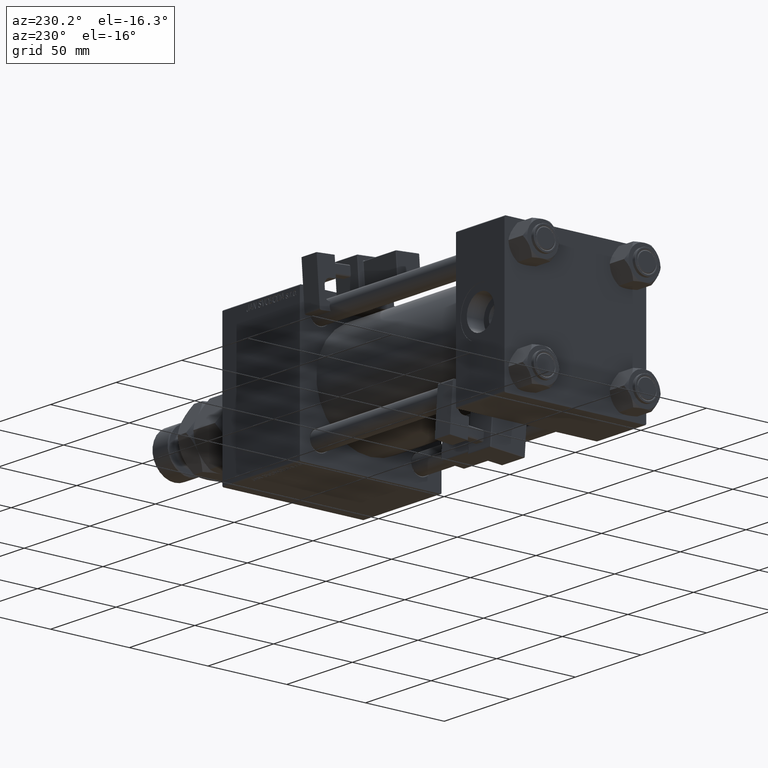
[diagram: clean part render]
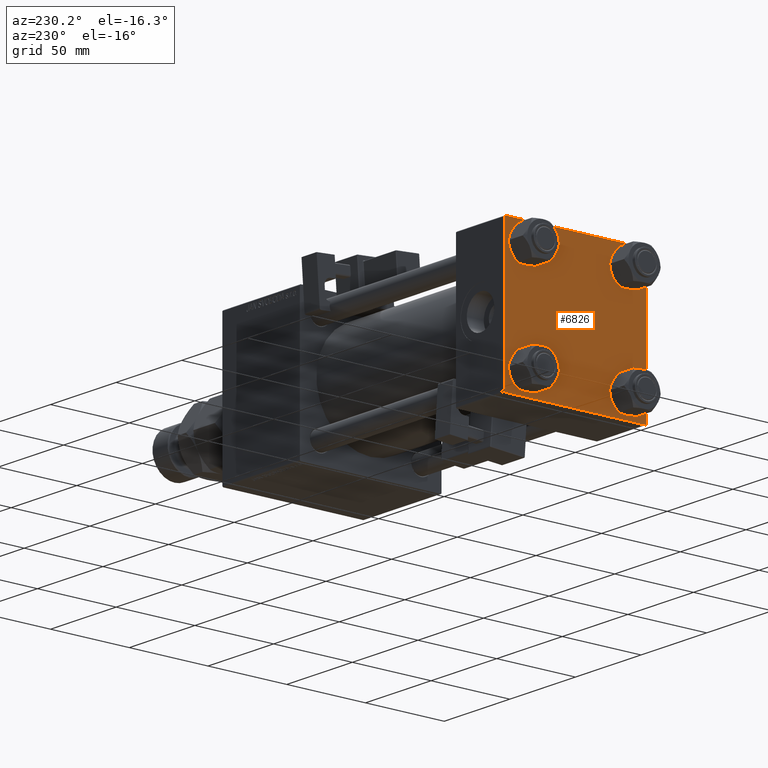
[diagram: same view with one face highlighted and labeled with its STEP entity id]
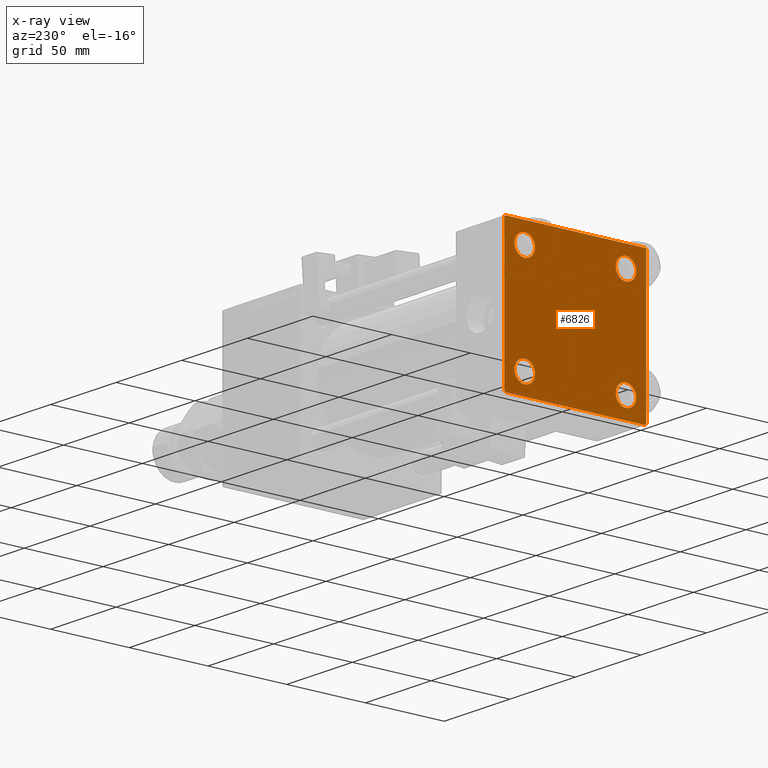
[diagram: x-ray of the same camera — body ghosted, the highlighted face saturated]
A machine part, auxiliary view. The second image highlights one B-rep face of the part: STEP entity #6826.
The next image is the same camera in x-ray: the body ghosted, the highlighted face saturated — about 0% of this face is hidden behind the body in this view.
In plain terms, the highlighted planar face has unit normal (-1, 0, 0).
Its self-contained STEP definition (entity closure, byte-faithful):
#247 = CARTESIAN_POINT ( 'NONE',  ( 0.000000000000000000, 45.00000000000000000, -44.99999999999999289 ) ) ;
#345 = EDGE_CURVE ( 'NONE', #19307, #38121, #54175, .T. ) ;
#425 = ORIENTED_EDGE ( 'NONE', *, *, #35786, .T. ) ;
#2305 = DIRECTION ( 'NONE',  ( -0.000000000000000000, 0.7071067811865474617, 0.7071067811865474617 ) ) ;
#2567 = DIRECTION ( 'NONE',  ( 0.000000000000000000, 0.000000000000000000, -1.000000000000000000 ) ) ;
#2833 = VERTEX_POINT ( 'NONE', #18447 ) ;
#2892 = VERTEX_POINT ( 'NONE', #48249 ) ;
#3566 = VERTEX_POINT ( 'NONE', #27595 ) ;
#3777 = FACE_BOUND ( 'NONE', #36440, .T. ) ;
#3823 = VERTEX_POINT ( 'NONE', #24246 ) ;
#3924 = CARTESIAN_POINT ( 'NONE',  ( 0.000000000000000000, -32.14999999999997726, 32.15000000000000568 ) ) ;
#4129 = CARTESIAN_POINT ( 'NONE',  ( 0.000000000000000000, -44.74999999999873523, -44.75000000000122924 ) ) ;
#4184 = ORIENTED_EDGE ( 'NONE', *, *, #10489, .T. ) ;
#5261 = ORIENTED_EDGE ( 'NONE', *, *, #48648, .T. ) ;
#5578 = CARTESIAN_POINT ( 'NONE',  ( 0.000000000000000000, 32.14999999999999147, -25.64999999999997726 ) ) ;
#5672 = CARTESIAN_POINT ( 'NONE',  ( 0.000000000000000000, 44.74999999999999289, -44.74999999999999289 ) ) ;
#6826 = ADVANCED_FACE ( 'NONE', ( #16380, #33071, #24294, #3777, #44829 ), #20469, .T. ) ;
#7075 = EDGE_CURVE ( 'NONE', #2892, #43060, #7378, .T. ) ;
#7378 = CIRCLE ( 'NONE', #40505, 6.499999999999977796 ) ;
#7679 = CARTESIAN_POINT ( 'NONE',  ( 0.000000000000000000, -45.00000000000000000, 44.49999999999998579 ) ) ;
#8264 = AXIS2_PLACEMENT_3D ( 'NONE', #36085, #40728, #41001 ) ;
#8336 = ORIENTED_EDGE ( 'NONE', *, *, #9171, .F. ) ;
#8524 = DIRECTION ( 'NONE',  ( 0.000000000000000000, -0.7071067811865672237, 0.7071067811865279218 ) ) ;
#8598 = EDGE_LOOP ( 'NONE', ( #42769, #27891 ) ) ;
#9171 = EDGE_CURVE ( 'NONE', #28855, #2833, #43046, .T. ) ;
#9326 = DIRECTION ( 'NONE',  ( 1.000000000000000000, -0.000000000000000000, 0.000000000000000000 ) ) ;
#9517 = ORIENTED_EDGE ( 'NONE', *, *, #13509, .T. ) ;
#9725 = DIRECTION ( 'NONE',  ( 0.000000000000000000, 0.000000000000000000, 1.000000000000000000 ) ) ;
#10350 = CARTESIAN_POINT ( 'NONE',  ( 0.000000000000000000, -32.14999999999997726, -38.64999999999998437 ) ) ;
#10489 = EDGE_CURVE ( 'NONE', #47501, #3566, #12676, .T. ) ;
#10728 = DIRECTION ( 'NONE',  ( 0.000000000000000000, 0.000000000000000000, 1.000000000000000000 ) ) ;
#11121 = VECTOR ( 'NONE', #8524, 1000.000000000000000 ) ;
#11302 = ORIENTED_EDGE ( 'NONE', *, *, #52947, .T. ) ;
#11494 = CARTESIAN_POINT ( 'NONE',  ( 0.000000000000000000, 32.14999999999999147, 32.14999999999999858 ) ) ;
#11921 = AXIS2_PLACEMENT_3D ( 'NONE', #22571, #22302, #9725 ) ;
#11978 = CARTESIAN_POINT ( 'NONE',  ( 0.000000000000000000, -44.49999999999994316, -45.00000000000000000 ) ) ;
#12676 = CIRCLE ( 'NONE', #20504, 6.500000000000019540 ) ;
#12739 = EDGE_CURVE ( 'NONE', #43060, #2892, #22342, .T. ) ;
#13131 = CARTESIAN_POINT ( 'NONE',  ( 0.000000000000000000, 44.74999999999936762, 44.75000000000061107 ) ) ;
#13509 = EDGE_CURVE ( 'NONE', #39677, #25163, #47728, .T. ) ;
#13693 = AXIS2_PLACEMENT_3D ( 'NONE', #41618, #46263, #53943 ) ;
#14357 = CARTESIAN_POINT ( 'NONE',  ( 0.000000000000000000, 45.00000000000000000, 45.00000000000000711 ) ) ;
#15417 = CIRCLE ( 'NONE', #46007, 6.499999999999977796 ) ;
#15676 = DIRECTION ( 'NONE',  ( 0.000000000000000000, 0.000000000000000000, 1.000000000000000000 ) ) ;
#16188 = ORIENTED_EDGE ( 'NONE', *, *, #50403, .T. ) ;
#16259 = VECTOR ( 'NONE', #2305, 1000.000000000000114 ) ;
#16380 = FACE_BOUND ( 'NONE', #8598, .T. ) ;
#16496 = CARTESIAN_POINT ( 'NONE',  ( 0.000000000000000000, 44.50000000000000000, -44.99999999999999289 ) ) ;
#17190 = VERTEX_POINT ( 'NONE', #39498 ) ;
#17870 = DIRECTION ( 'NONE',  ( 0.000000000000000000, 0.000000000000000000, -1.000000000000000000 ) ) ;
#18265 = EDGE_CURVE ( 'NONE', #30009, #53100, #18687, .T. ) ;
#18288 = DIRECTION ( 'NONE',  ( 1.000000000000000000, -0.000000000000000000, 0.000000000000000000 ) ) ;
#18447 = CARTESIAN_POINT ( 'NONE',  ( 0.000000000000000000, -45.00000000000000000, -44.49999999999997158 ) ) ;
#18687 = LINE ( 'NONE', #35667, #27063 ) ;
#18702 = ORIENTED_EDGE ( 'NONE', *, *, #18265, .F. ) ;
#18948 = CARTESIAN_POINT ( 'NONE',  ( 0.000000000000000000, 32.14999999999999147, 32.14999999999999858 ) ) ;
#19307 = VERTEX_POINT ( 'NONE', #16496 ) ;
#19770 = CARTESIAN_POINT ( 'NONE',  ( 0.000000000000000000, -32.14999999999997726, -32.15000000000000568 ) ) ;
#20469 = PLANE ( 'NONE',  #8264 ) ;
#20504 = AXIS2_PLACEMENT_3D ( 'NONE', #26472, #18288, #39621 ) ;
#20588 = AXIS2_PLACEMENT_3D ( 'NONE', #30110, #9326, #25712 ) ;
#21879 = EDGE_LOOP ( 'NONE', ( #4184, #39645 ) ) ;
#22302 = DIRECTION ( 'NONE',  ( 1.000000000000000000, -0.000000000000000000, 0.000000000000000000 ) ) ;
#22342 = CIRCLE ( 'NONE', #20588, 6.499999999999977796 ) ;
#22571 = CARTESIAN_POINT ( 'NONE',  ( 0.000000000000000000, -32.14999999999997726, -32.15000000000000568 ) ) ;
#23037 = CIRCLE ( 'NONE', #42280, 6.500000000000019540 ) ;
#24246 = CARTESIAN_POINT ( 'NONE',  ( 0.000000000000000000, 45.00000000000000000, 44.49999999999999289 ) ) ;
#24294 = FACE_BOUND ( 'NONE', #21879, .T. ) ;
#25163 = VERTEX_POINT ( 'NONE', #10350 ) ;
#25483 = CARTESIAN_POINT ( 'NONE',  ( 0.000000000000000000, 32.14999999999999147, 25.64999999999997726 ) ) ;
#25712 = DIRECTION ( 'NONE',  ( 0.000000000000000000, 0.000000000000000000, 1.000000000000000000 ) ) ;
#26472 = CARTESIAN_POINT ( 'NONE',  ( 0.000000000000000000, 32.14999999999999147, -32.14999999999999858 ) ) ;
#26670 = EDGE_CURVE ( 'NONE', #47833, #17190, #23037, .T. ) ;
#27063 = VECTOR ( 'NONE', #27421, 1000.000000000000000 ) ;
#27421 = DIRECTION ( 'NONE',  ( 0.000000000000000000, -1.000000000000000000, -2.312964634635742957E-16 ) ) ;
#27595 = CARTESIAN_POINT ( 'NONE',  ( 0.000000000000000000, 32.14999999999999147, -38.65000000000001990 ) ) ;
#27634 = CIRCLE ( 'NONE', #13693, 6.500000000000019540 ) ;
#27891 = ORIENTED_EDGE ( 'NONE', *, *, #7075, .T. ) ;
#28337 = VECTOR ( 'NONE', #17870, 1000.000000000000000 ) ;
#28434 = EDGE_CURVE ( 'NONE', #3823, #46184, #35146, .T. ) ;
#28444 = DIRECTION ( 'NONE',  ( 1.000000000000000000, -0.000000000000000000, 0.000000000000000000 ) ) ;
#28783 = DIRECTION ( 'NONE',  ( 1.000000000000000000, -0.000000000000000000, 0.000000000000000000 ) ) ;
#28855 = VERTEX_POINT ( 'NONE', #7679 ) ;
#29805 = DIRECTION ( 'NONE',  ( 0.000000000000000000, 0.7071067811865574537, -0.7071067811865376918 ) ) ;
#30009 = VERTEX_POINT ( 'NONE', #53131 ) ;
#30110 = CARTESIAN_POINT ( 'NONE',  ( 0.000000000000000000, -32.14999999999997726, 32.15000000000000568 ) ) ;
#30580 = LINE ( 'NONE', #5672, #44008 ) ;
#33071 = FACE_BOUND ( 'NONE', #43087, .T. ) ;
#33476 = DIRECTION ( 'NONE',  ( 0.000000000000000000, 0.000000000000000000, 1.000000000000000000 ) ) ;
#35146 = LINE ( 'NONE', #14357, #50982 ) ;
#35375 = DIRECTION ( 'NONE',  ( 1.000000000000000000, -0.000000000000000000, 0.000000000000000000 ) ) ;
#35667 = CARTESIAN_POINT ( 'NONE',  ( 0.000000000000000000, 45.00000000000000000, 45.00000000000000711 ) ) ;
#35786 = EDGE_CURVE ( 'NONE', #28855, #53100, #47192, .T. ) ;
#36085 = CARTESIAN_POINT ( 'NONE',  ( 0.000000000000000000, 0.000000000000000000, 0.000000000000000000 ) ) ;
#36364 = EDGE_CURVE ( 'NONE', #3566, #47501, #27634, .T. ) ;
#36440 = EDGE_LOOP ( 'NONE', ( #5261, #48676 ) ) ;
#36847 = VECTOR ( 'NONE', #41298, 1000.000000000000000 ) ;
#38121 = VERTEX_POINT ( 'NONE', #11978 ) ;
#39498 = CARTESIAN_POINT ( 'NONE',  ( 0.000000000000000000, 32.14999999999999147, 38.65000000000001990 ) ) ;
#39621 = DIRECTION ( 'NONE',  ( 0.000000000000000000, 0.000000000000000000, 1.000000000000000000 ) ) ;
#39645 = ORIENTED_EDGE ( 'NONE', *, *, #36364, .T. ) ;
#39677 = VERTEX_POINT ( 'NONE', #40315 ) ;
#39679 = CARTESIAN_POINT ( 'NONE',  ( 0.000000000000000000, 45.00000000000000000, -44.49999999999996447 ) ) ;
#40315 = CARTESIAN_POINT ( 'NONE',  ( 0.000000000000000000, -32.14999999999997726, -25.65000000000002700 ) ) ;
#40505 = AXIS2_PLACEMENT_3D ( 'NONE', #3924, #49613, #33476 ) ;
#40728 = DIRECTION ( 'NONE',  ( -1.000000000000000000, 0.000000000000000000, -0.000000000000000000 ) ) ;
#40761 = VECTOR ( 'NONE', #29805, 999.9999999999998863 ) ;
#41001 = DIRECTION ( 'NONE',  ( -0.000000000000000000, 0.000000000000000000, 1.000000000000000000 ) ) ;
#41298 = DIRECTION ( 'NONE',  ( 0.000000000000000000, -1.000000000000000000, -7.709882115452476934E-17 ) ) ;
#41552 = CIRCLE ( 'NONE', #52030, 6.500000000000019540 ) ;
#41618 = CARTESIAN_POINT ( 'NONE',  ( 0.000000000000000000, 32.14999999999999147, -32.14999999999999858 ) ) ;
#42280 = AXIS2_PLACEMENT_3D ( 'NONE', #18948, #35375, #10728 ) ;
#42769 = ORIENTED_EDGE ( 'NONE', *, *, #12739, .T. ) ;
#43046 = LINE ( 'NONE', #43848, #28337 ) ;
#43060 = VERTEX_POINT ( 'NONE', #51743 ) ;
#43087 = EDGE_LOOP ( 'NONE', ( #9517, #45520 ) ) ;
#43848 = CARTESIAN_POINT ( 'NONE',  ( 0.000000000000000000, -45.00000000000000000, 44.99999999999998579 ) ) ;
#44008 = VECTOR ( 'NONE', #47793, 1000.000000000000114 ) ;
#44418 = EDGE_CURVE ( 'NONE', #46184, #19307, #30580, .T. ) ;
#44829 = FACE_OUTER_BOUND ( 'NONE', #51975, .T. ) ;
#45159 = DIRECTION ( 'NONE',  ( 0.000000000000000000, 0.000000000000000000, 1.000000000000000000 ) ) ;
#45520 = ORIENTED_EDGE ( 'NONE', *, *, #50815, .T. ) ;
#46007 = AXIS2_PLACEMENT_3D ( 'NONE', #19770, #28783, #15676 ) ;
#46184 = VERTEX_POINT ( 'NONE', #39679 ) ;
#46263 = DIRECTION ( 'NONE',  ( 1.000000000000000000, -0.000000000000000000, 0.000000000000000000 ) ) ;
#47070 = CARTESIAN_POINT ( 'NONE',  ( 0.000000000000000000, -44.49999999999997158, 44.99999999999998579 ) ) ;
#47192 = LINE ( 'NONE', #47722, #16259 ) ;
#47501 = VERTEX_POINT ( 'NONE', #5578 ) ;
#47722 = CARTESIAN_POINT ( 'NONE',  ( -0.000000000000000000, -44.74999999999999289, 44.74999999999999289 ) ) ;
#47728 = CIRCLE ( 'NONE', #11921, 6.499999999999977796 ) ;
#47793 = DIRECTION ( 'NONE',  ( -0.000000000000000000, -0.7071067811865474617, -0.7071067811865474617 ) ) ;
#47833 = VERTEX_POINT ( 'NONE', #25483 ) ;
#48249 = CARTESIAN_POINT ( 'NONE',  ( 0.000000000000000000, -32.14999999999997726, 25.65000000000002700 ) ) ;
#48648 = EDGE_CURVE ( 'NONE', #17190, #47833, #41552, .T. ) ;
#48676 = ORIENTED_EDGE ( 'NONE', *, *, #26670, .T. ) ;
#49454 = ORIENTED_EDGE ( 'NONE', *, *, #44418, .T. ) ;
#49613 = DIRECTION ( 'NONE',  ( 1.000000000000000000, -0.000000000000000000, 0.000000000000000000 ) ) ;
#49810 = LINE ( 'NONE', #4129, #11121 ) ;
#50403 = EDGE_CURVE ( 'NONE', #30009, #3823, #50607, .T. ) ;
#50607 = LINE ( 'NONE', #13131, #40761 ) ;
#50815 = EDGE_CURVE ( 'NONE', #25163, #39677, #15417, .T. ) ;
#50982 = VECTOR ( 'NONE', #2567, 1000.000000000000000 ) ;
#51743 = CARTESIAN_POINT ( 'NONE',  ( 0.000000000000000000, -32.14999999999997726, 38.64999999999999147 ) ) ;
#51823 = ORIENTED_EDGE ( 'NONE', *, *, #345, .T. ) ;
#51975 = EDGE_LOOP ( 'NONE', ( #52485, #49454, #51823, #11302, #8336, #425, #18702, #16188 ) ) ;
#52030 = AXIS2_PLACEMENT_3D ( 'NONE', #11494, #28444, #45159 ) ;
#52485 = ORIENTED_EDGE ( 'NONE', *, *, #28434, .T. ) ;
#52947 = EDGE_CURVE ( 'NONE', #38121, #2833, #49810, .T. ) ;
#53100 = VERTEX_POINT ( 'NONE', #47070 ) ;
#53131 = CARTESIAN_POINT ( 'NONE',  ( 0.000000000000000000, 44.49999999999997158, 45.00000000000000711 ) ) ;
#53943 = DIRECTION ( 'NONE',  ( 0.000000000000000000, 0.000000000000000000, 1.000000000000000000 ) ) ;
#54175 = LINE ( 'NONE', #247, #36847 ) ;